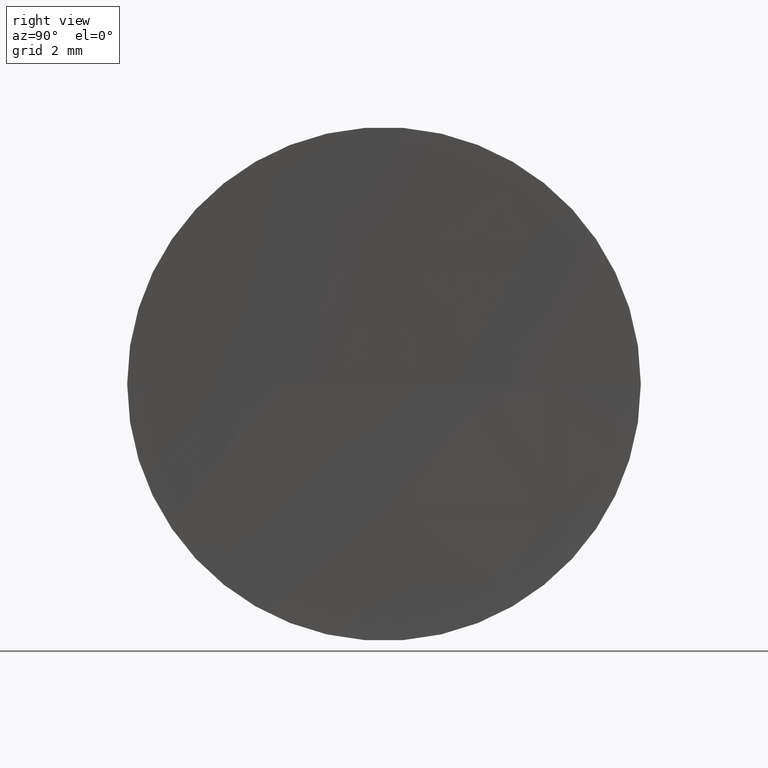
[diagram: clean part render]
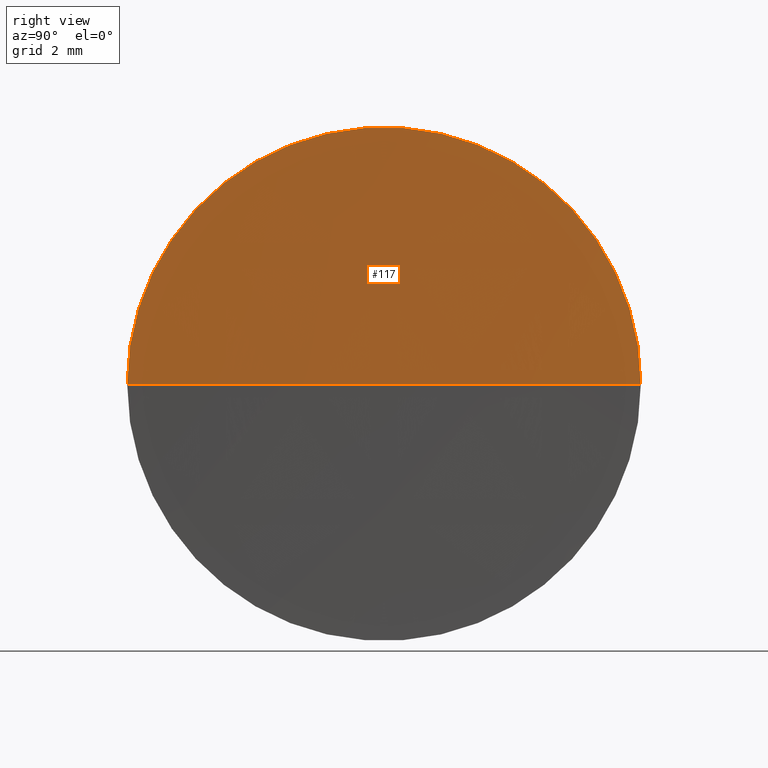
[diagram: same view with one face highlighted and labeled with its STEP entity id]
A machine part, right view. The second image highlights one B-rep face of the part: STEP entity #117.
In plain terms, the highlighted spherical surface has radius 240 mm.
Its self-contained STEP definition (entity closure, byte-faithful):
#2 = AXIS2_PLACEMENT_3D ( 'NONE', #74, #187, #85 ) ;
#6 = EDGE_LOOP ( 'NONE', ( #184, #168, #107 ) ) ;
#8 = AXIS2_PLACEMENT_3D ( 'NONE', #192, #60, #103 ) ;
#11 = DIRECTION ( 'NONE',  ( 0.0000000000000000000, 1.000000000000000000, 1.224646799147353000E-016 ) ) ;
#14 = CARTESIAN_POINT ( 'NONE',  ( 63.55530463170244800, 32.60842023547017000, 0.0000000000000000000 ) ) ;
#15 = DIRECTION ( 'NONE',  ( 0.0000000000000000000, -1.000000000000000000, 0.0000000000000000000 ) ) ;
#44 = CARTESIAN_POINT ( 'NONE',  ( 63.47391062131718800, 32.60842023547004900, 0.0000000000000000000 ) ) ;
#49 = CIRCLE ( 'NONE', #90, 240.0000000000000900 ) ;
#51 = AXIS2_PLACEMENT_3D ( 'NONE', #14, #136, #15 ) ;
#57 = CARTESIAN_POINT ( 'NONE',  ( 63.55530463170246200, 38.85842023547034100, 0.0000000000000000000 ) ) ;
#60 = DIRECTION ( 'NONE',  ( 0.0000000000000000000, -0.0000000000000000000, 1.000000000000000000 ) ) ;
#74 = CARTESIAN_POINT ( 'NONE',  ( 303.4739106213172600, 32.60842023547020600, 0.0000000000000000000 ) ) ;
#80 = EDGE_CURVE ( 'NONE', #125, #109, #49, .T. ) ;
#85 = DIRECTION ( 'NONE',  ( -6.938893903907226400E-016, 1.000000000000000000, 0.0000000000000000000 ) ) ;
#90 = AXIS2_PLACEMENT_3D ( 'NONE', #183, #112, #11 ) ;
#103 = DIRECTION ( 'NONE',  ( 1.000000000000000000, 0.0000000000000000000, 0.0000000000000000000 ) ) ;
#107 = ORIENTED_EDGE ( 'NONE', *, *, #119, .F. ) ;
#109 = VERTEX_POINT ( 'NONE', #44 ) ;
#112 = DIRECTION ( 'NONE',  ( -8.496118506040342700E-032, 1.224646799147353200E-016, -1.000000000000000000 ) ) ;
#117 = ADVANCED_FACE ( 'NONE', ( #190 ), #175, .F. ) ;
#119 = EDGE_CURVE ( 'NONE', #123, #109, #157, .T. ) ;
#123 = VERTEX_POINT ( 'NONE', #57 ) ;
#125 = VERTEX_POINT ( 'NONE', #134 ) ;
#129 = EDGE_CURVE ( 'NONE', #125, #123, #142, .T. ) ;
#134 = CARTESIAN_POINT ( 'NONE',  ( 63.55530463170246200, 26.35842023546987200, -7.654042494671163700E-016 ) ) ;
#136 = DIRECTION ( 'NONE',  ( -1.000000000000000000, -6.937607244762875000E-016, -0.0000000000000000000 ) ) ;
#142 = CIRCLE ( 'NONE', #51, 6.249999999999974200 ) ;
#157 = CIRCLE ( 'NONE', #8, 240.0000000000001100 ) ;
#168 = ORIENTED_EDGE ( 'NONE', *, *, #80, .T. ) ;
#175 = SPHERICAL_SURFACE ( 'NONE', #2, 240.0000000000000600 ) ;
#183 = CARTESIAN_POINT ( 'NONE',  ( 303.4739106213172600, 32.60842023547020600, 0.0000000000000000000 ) ) ;
#184 = ORIENTED_EDGE ( 'NONE', *, *, #129, .F. ) ;
#187 = DIRECTION ( 'NONE',  ( 0.0000000000000000000, 0.0000000000000000000, -1.000000000000000000 ) ) ;
#190 = FACE_OUTER_BOUND ( 'NONE', #6, .T. ) ;
#192 = CARTESIAN_POINT ( 'NONE',  ( 303.4739106213172600, 32.60842023547020600, 0.0000000000000000000 ) ) ;